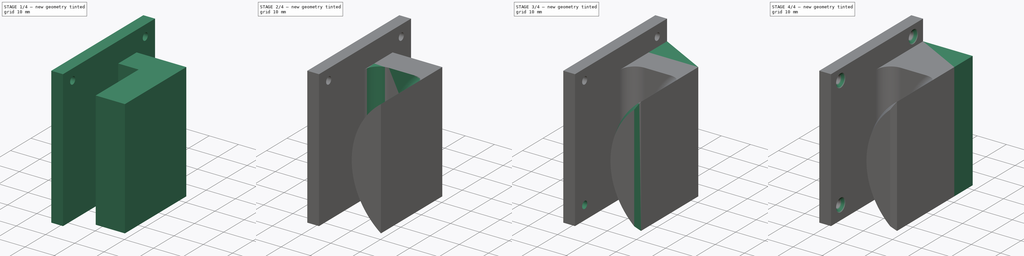
[diagram: build sequence overview — one tinted view per stage of 4, left to right]
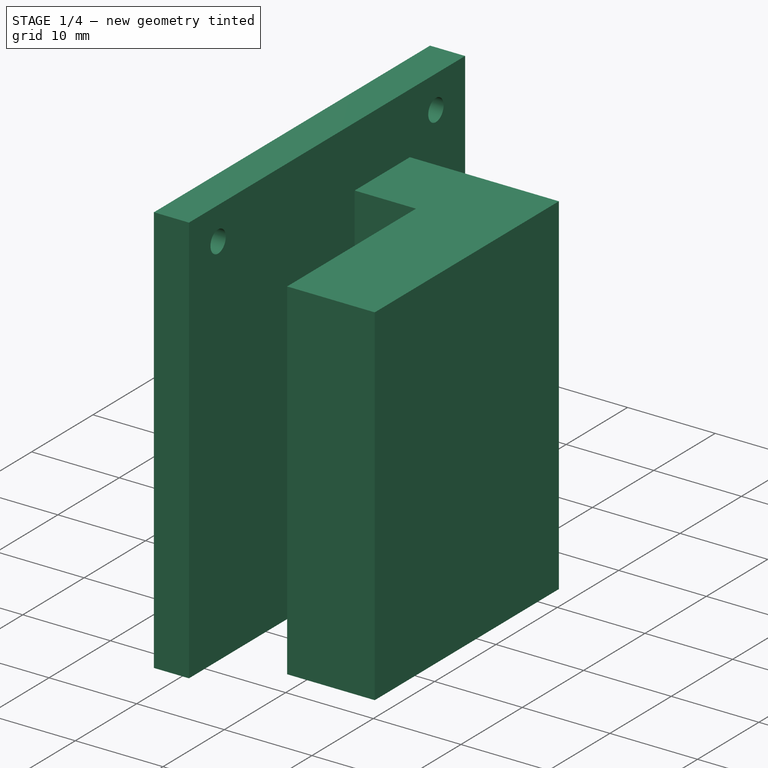
[diagram: stage 1 of 4 — iso view after this stage's code; geometry added in this stage tinted green]
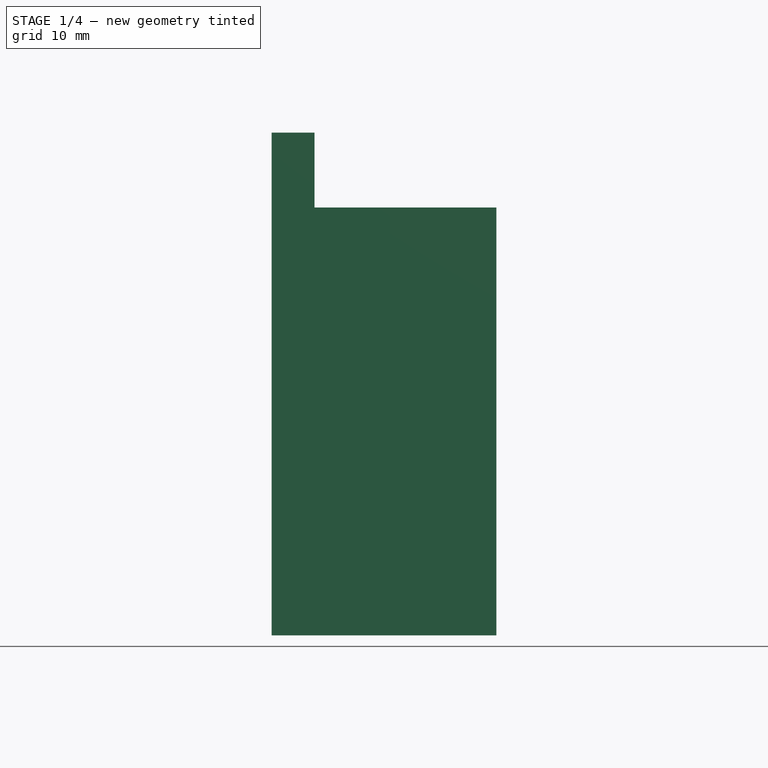
[diagram: stage 1 of 4 — front view after this stage's code; geometry added in this stage tinted green]
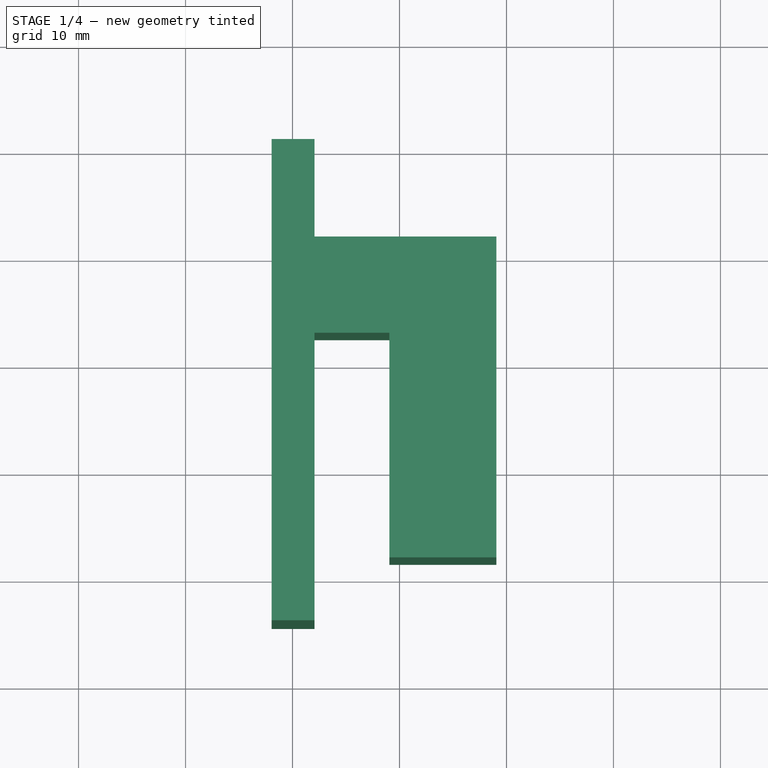
[diagram: stage 1 of 4 — top view after this stage's code; geometry added in this stage tinted green]
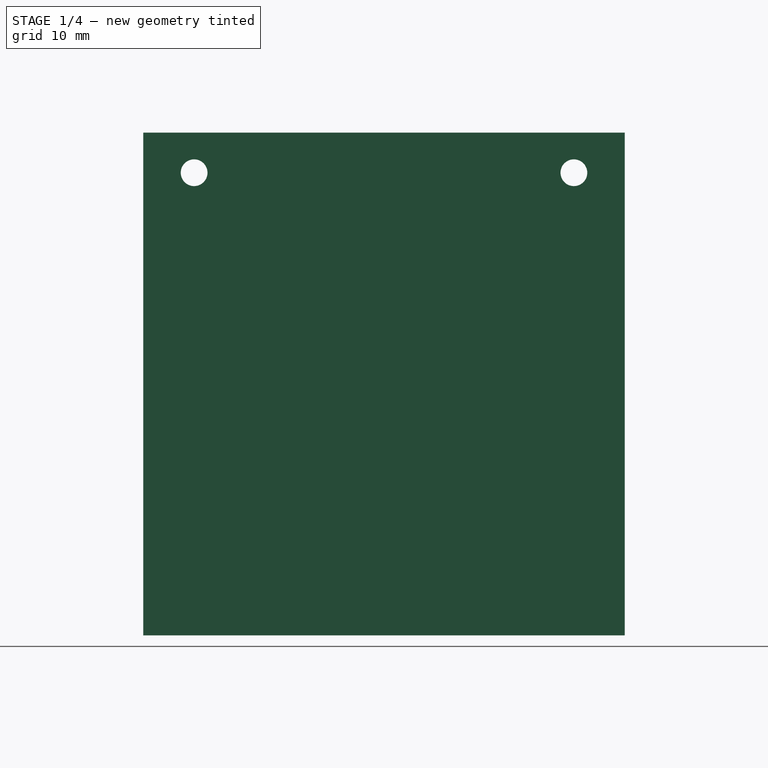
[diagram: stage 1 of 4 — right view after this stage's code; geometry added in this stage tinted green]
FCSTD DOCUMENT  (FreeCAD 1.0R39285 (Git))
Label: Вешалка для ледобуров 
License: All rights reserved
LicenseURL: https://en.wikipedia.org/wiki/All_rights_reserved
objects: Sketcher::SketchObject×7, PartDesign::Pocket×4, PartDesign::Pad×3, PartDesign::Chamfer×3, PartDesign::Fillet×2, PartDesign::Body×1
note: 51 computed .brp shape members not serialized (recipe doc carries the construction recipe); baked Part::Feature solids carry a one-line shape summary decoded from their .brp

FEATURE [Sketcher::SketchObject] Sketch
  ArcFitTolerance = 1e-06
  AttachmentSupport = -> [XY_Plane]
  FullyConstrained = false
  MakeInternals = false
  MapMode = 5
  sketch-geometry (15):
    g0: LineSegment StartX=-21.9488 StartY=30.6009 StartZ=0 EndX=-21.9488 EndY=-14.3991 EndZ=0
    g1: LineSegment StartX=-21.9488 StartY=-14.3991 StartZ=0 EndX=-17.9488 EndY=-14.3991 EndZ=0
    g2: LineSegment StartX=-17.9488 StartY=-14.3991 StartZ=0 EndX=-17.9488 EndY=12.6009 EndZ=0
    g3: LineSegment StartX=-17.9488 StartY=12.6009 StartZ=0 EndX=-10.9488 EndY=12.6009 EndZ=0
    g4: LineSegment StartX=-10.9488 StartY=12.6009 StartZ=0 EndX=-10.9488 EndY=-8.39905 EndZ=0
    g5: LineSegment StartX=-10.9488 StartY=-8.39905 StartZ=0 EndX=-0.948795 EndY=-8.39905 EndZ=0
    g6: LineSegment StartX=-0.948795 StartY=-8.39905 StartZ=0 EndX=-0.948795 EndY=21.6009 EndZ=0
    g7: LineSegment StartX=-0.948795 StartY=21.6009 StartZ=0 EndX=-17.9488 EndY=21.6009 EndZ=0
    g8: LineSegment StartX=-17.9488 StartY=21.6009 StartZ=0 EndX=-17.9488 EndY=30.6009 EndZ=0
    g9: LineSegment StartX=-17.9488 StartY=30.6009 StartZ=0 EndX=-21.9488 EndY=30.6009 EndZ=0
    g10: LineSegment [constr] StartX=-17.9488 StartY=-14.3991 StartZ=0 EndX=-17.9488 EndY=-5.39905 EndZ=0
    g11: LineSegment [constr] StartX=-17.9488 StartY=-5.39905 StartZ=0 EndX=-17.9488 EndY=3.60095 EndZ=0
    g12: LineSegment [constr] StartX=-17.9488 StartY=3.60095 StartZ=0 EndX=-17.9488 EndY=12.6009 EndZ=0
    g13: LineSegment [constr] StartX=-17.9488 StartY=12.6009 StartZ=0 EndX=-17.9488 EndY=21.6009 EndZ=0
    g14: LineSegment [constr] StartX=-17.9488 StartY=21.6009 StartZ=0 EndX=-17.9488 EndY=30.6009 EndZ=0
  constraints (40):
    c: Coincident(g0,g1)
    c: Coincident(g1,g2)
    c: Coincident(g2,g3)
    c: Coincident(g3,g4)
    c: Vertical(g4)
    c: Coincident(g4,g5)
    c: Horizontal(g5)
    c: Coincident(g5,g6)
    c: Vertical(g6)
    c: Coincident(g6,g7)
    c: Coincident(g7,g8)
    c: Coincident(g8,g9)
    c: Coincident(g9,g0)
    c: Vertical(g0)
    c: Horizontal(g9)
    c: Horizontal(g7)
    c: Horizontal(g3)
    c: Vertical(g8)
    c: Horizontal(g1)
    c: Vertical(g2)
    c: Coincident(g1,g10)
    c: Coincident(g10,g11)
    c: Vertical(g11)
    c: Coincident(g11,g12)
    c: Coincident(g12,g13)
    c: Coincident(g13,g14)
    c: Coincident(g14,g8)
    c: Equal(g14,g13)
    c: Equal(g13,g12)
    c: Equal(g12,g11)
    c: Equal(g11,g10)
    c: Vertical(g13)
    c: Vertical(g12)
    c: Coincident(g7,g13)
    c: Coincident(g2,g12)
    c: DistanceX(g9,g9) = 4
    c: DistanceY(g1,g4) = 6
    c: DistanceY(g1,g8) = 45
    c: DistanceX(g2,g3) = 7
    c: DistanceX(g5,g5) = 10
FEATURE [PartDesign::Pad] Pad
  Direction = (0,0,1)
  Length = 40
  Length2 = 10
  Profile = -> Sketch
  ReferenceAxis = -> Sketch [N_Axis]
  Refine = true
  Suppressed = false
  Type = 0
FEATURE [Sketcher::SketchObject] Sketch001
  ArcFitTolerance = 1e-06
  AttachmentSupport = -> [Pad]
  ExternalGeometry = -> [Pad]
  FullyConstrained = true
  MakeInternals = false
  MapMode = 5
  Placement = pos=(0,0,40) rot=(0,0,1;0rad)
  sketch-geometry (4):
    g0: LineSegment StartX=-21.9488 StartY=30.6009 StartZ=0 EndX=-21.9488 EndY=-14.3991 EndZ=0
    g1: LineSegment StartX=-21.9488 StartY=-14.3991 StartZ=0 EndX=-17.9488 EndY=-14.3991 EndZ=0
    g2: LineSegment StartX=-17.9488 StartY=-14.3991 StartZ=0 EndX=-17.9488 EndY=30.6009 EndZ=0
    g3: LineSegment StartX=-17.9488 StartY=30.6009 StartZ=0 EndX=-21.9488 EndY=30.6009 EndZ=0
  constraints (10):
    c: Coincident(g0,g1)
    c: Coincident(g1,g2)
    c: Coincident(g2,g3)
    c: Coincident(g3,g0)
    c: Vertical(g0)
    c: Vertical(g2)
    c: Horizontal(g1)
    c: Horizontal(g3)
    c: Coincident(g0,g-3)
    c: Coincident(g1,g-4)
FEATURE [PartDesign::Pad] Pad001
  BaseFeature = -> Pad
  Direction = (0,0,1)
  Length = 7
  Length2 = 10
  Profile = -> Sketch001
  ReferenceAxis = -> Sketch001 [N_Axis]
  Refine = true
  Suppressed = false
  Type = 0
FEATURE [Sketcher::SketchObject] Sketch002
  ArcFitTolerance = 1e-06
  AttachmentSupport = -> [Pad001]
  ExternalGeometry = -> [Pad001]
  FullyConstrained = true
  MakeInternals = false
  MapMode = 5
  Placement = pos=(-17.9488,0,0) rot=(0.57735,0.57735,0.57735;2.0944rad)
  sketch-geometry (4):
    g0: Circle CenterX=-9.64905 CenterY=43.25 CenterZ=0 NormalX=0 NormalY=0 NormalZ=1 AngleXU=0 Radius=1.25
    g1: Circle CenterX=25.8509 CenterY=43.25 CenterZ=0 NormalX=0 NormalY=0 NormalZ=1 AngleXU=0 Radius=1.25
    g2: GeomPoint X=-10.8991 Y=43.25 Z=0
    g3: GeomPoint X=27.1009 Y=43.25 Z=0
  constraints (10):
    c: PointOnObject(g2,g0)
    c: PointOnObject(g3,g1)
    c: Horizontal(g0,g2)
    c: Horizontal(g1,g3)
    c: DistanceX(g-3,g2) = 3.5
    c: Distance(g0,g-3) = 2.5
    c: Distance(g1,g-3) = 2.5
    c: DistanceX(g3,g-3) = 3.5
    c: Diameter(g1) = 2.5
    c: Equal(g1,g0)
FEATURE [PartDesign::Pocket] Pocket
  BaseFeature = -> Pad001
  Direction = (-1,0,0)
  Length = 5
  Length2 = 5
  Profile = -> Sketch002
  ReferenceAxis = -> Sketch002 [N_Axis]
  Refine = true
  Suppressed = false
  Type = 1
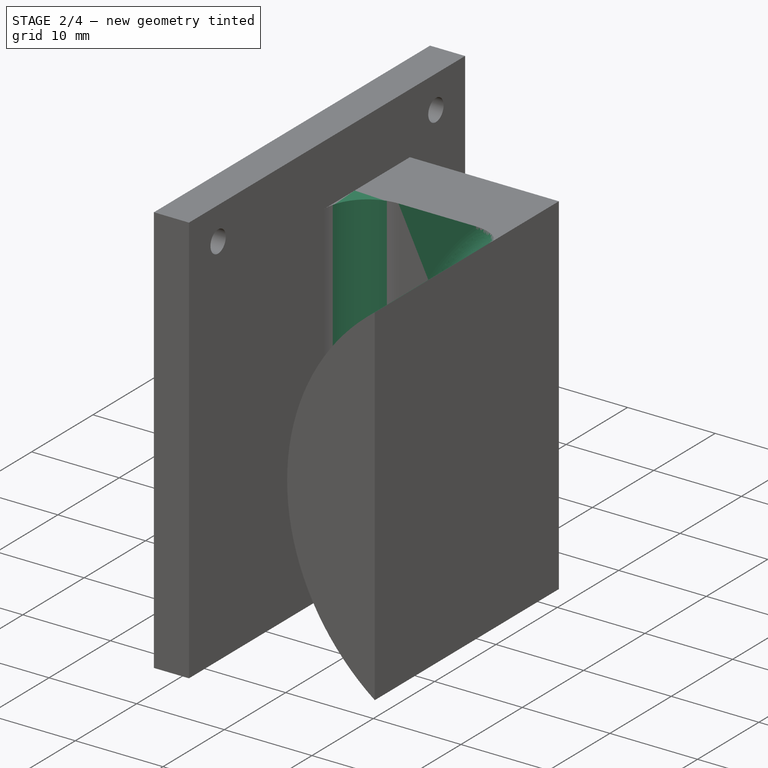
[diagram: stage 2 of 4 — iso view after this stage's code; geometry added in this stage tinted green]
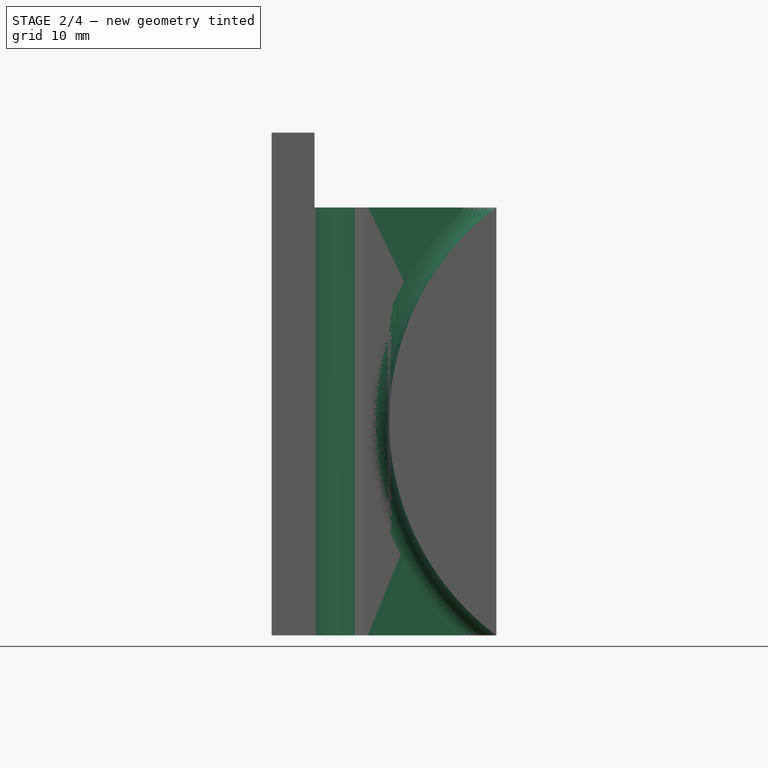
[diagram: stage 2 of 4 — front view after this stage's code; geometry added in this stage tinted green]
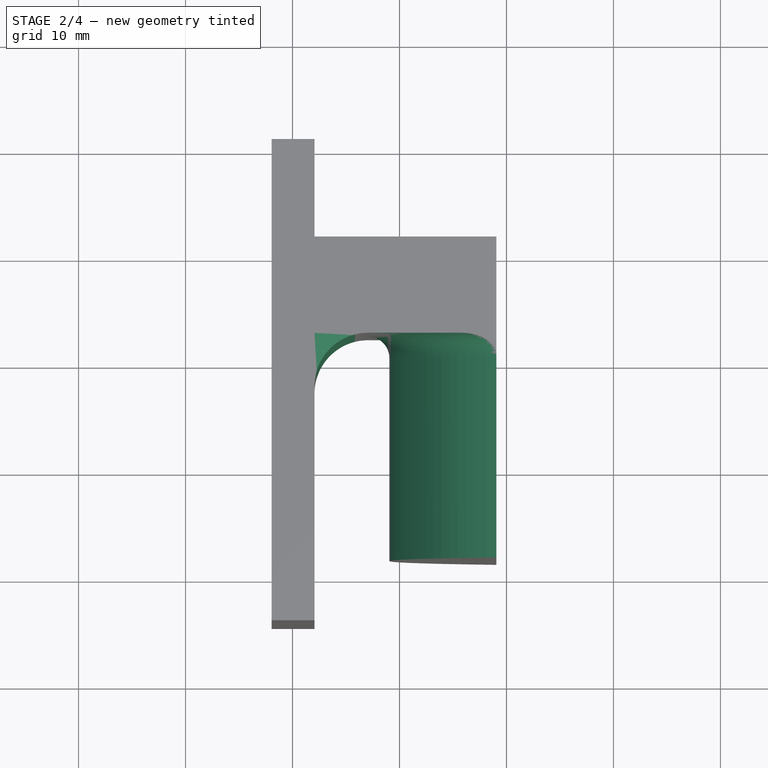
[diagram: stage 2 of 4 — top view after this stage's code; geometry added in this stage tinted green]
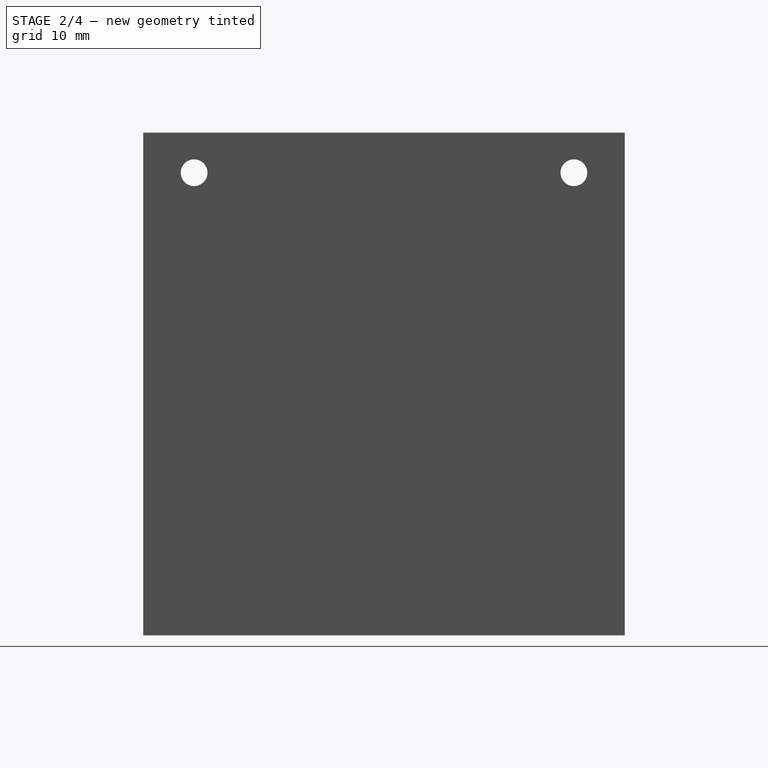
[diagram: stage 2 of 4 — right view after this stage's code; geometry added in this stage tinted green]
FEATURE [Sketcher::SketchObject] Sketch003
  ArcFitTolerance = 1e-06
  FullyConstrained = false
  MakeInternals = false
  MapMode = 5
  Placement = pos=(0,-8.39905,0) rot=(1,0,0;1.5708rad)
  sketch-geometry (4):
    g0: ArcOfCircle CenterX=14.0512 CenterY=20 CenterZ=0 NormalX=0 NormalY=0 NormalZ=1 AngleXU=0 Radius=25 StartAngle=2.2143 EndAngle=4.06889
    g1: LineSegment StartX=-0.948795 StartY=0 StartZ=0 EndX=-12.134 EndY=-1.98544 EndZ=0
    g2: LineSegment StartX=-12.134 StartY=-1.98544 StartZ=0 EndX=-12.134 EndY=42.9298 EndZ=0
    g3: LineSegment StartX=-12.134 StartY=42.9298 StartZ=0 EndX=-0.948795 EndY=40 EndZ=0
  constraints (8):
    c: Coincident(g0,g-5)
    c: Coincident(g0,g-6)
    c: Tangent(g0,g-7)
    c: Coincident(g1,g0)
    c: Coincident(g2,g1)
    c: Vertical(g2)
    c: Coincident(g3,g2)
    c: Coincident(g3,g0)
FEATURE [PartDesign::Pocket] Pocket001
  BaseFeature = -> Pocket
  Direction = (0,1,-2e-16)
  Length = 21
  Length2 = 5
  Profile = -> Sketch003
  ReferenceAxis = -> Sketch003 [N_Axis]
  Refine = true
  Suppressed = false
  Type = 0
FEATURE [PartDesign::Fillet] Fillet
  Base = -> Pocket001 [Edge14]
  BaseFeature = -> Pocket001
  Radius = 5
  Refine = true
  SupportTransform = false
  Suppressed = false
  UseAllEdges = false
FEATURE [PartDesign::Fillet] Fillet001
  Base = -> Fillet [Edge13]
  BaseFeature = -> Fillet
  Radius = 2
  Refine = true
  SupportTransform = false
  Suppressed = false
  UseAllEdges = false
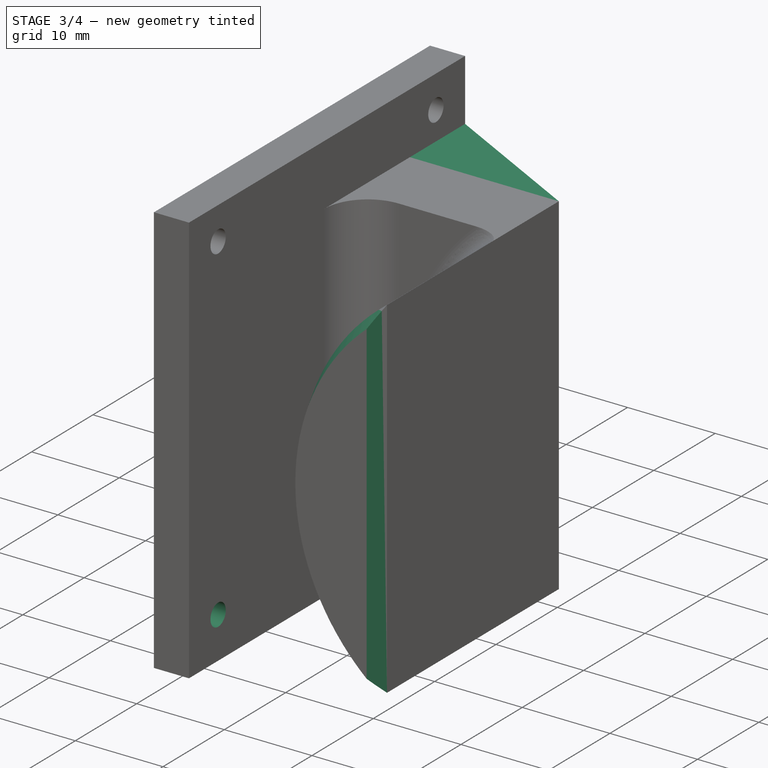
[diagram: stage 3 of 4 — iso view after this stage's code; geometry added in this stage tinted green]
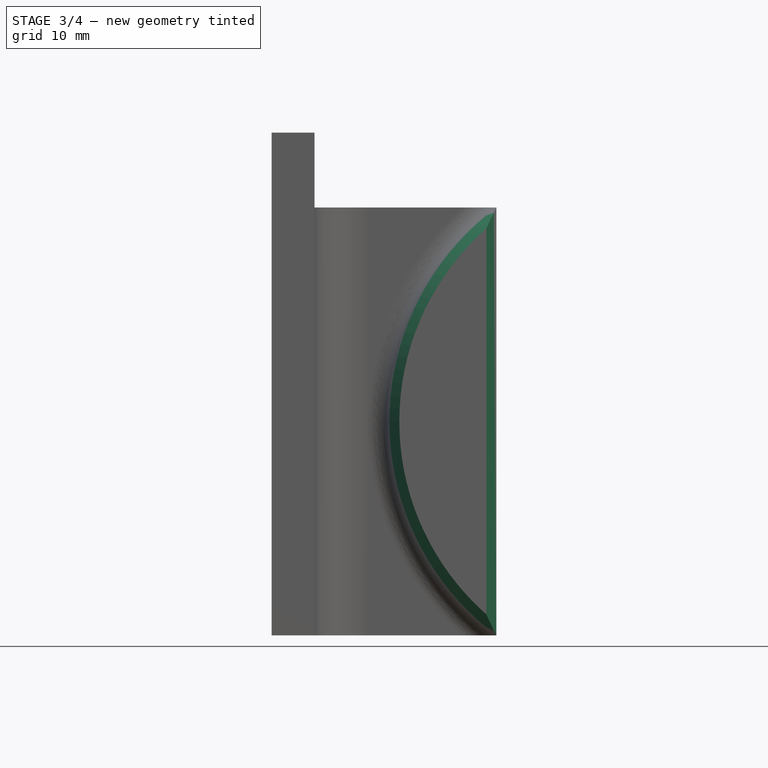
[diagram: stage 3 of 4 — front view after this stage's code; geometry added in this stage tinted green]
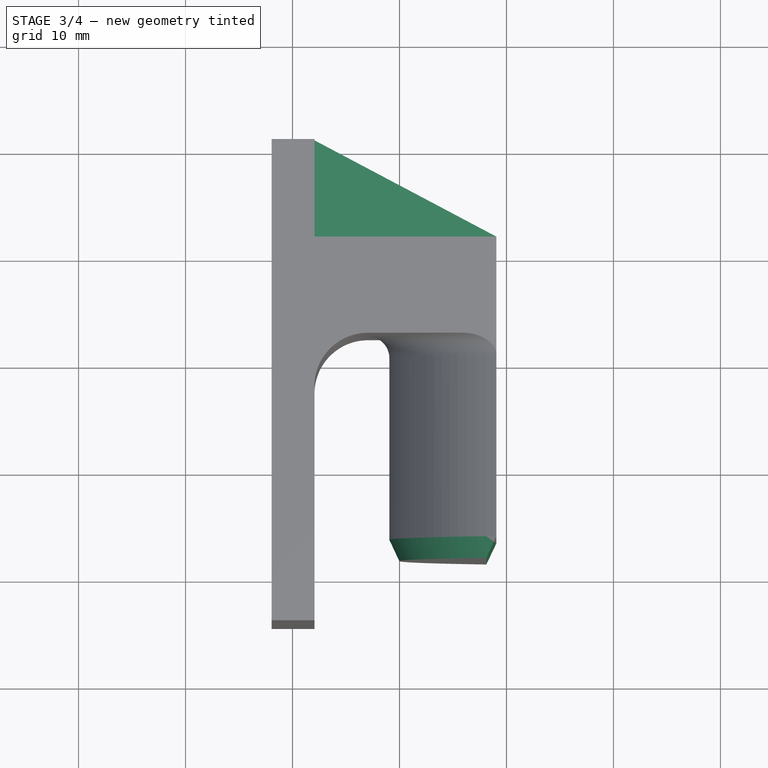
[diagram: stage 3 of 4 — top view after this stage's code; geometry added in this stage tinted green]
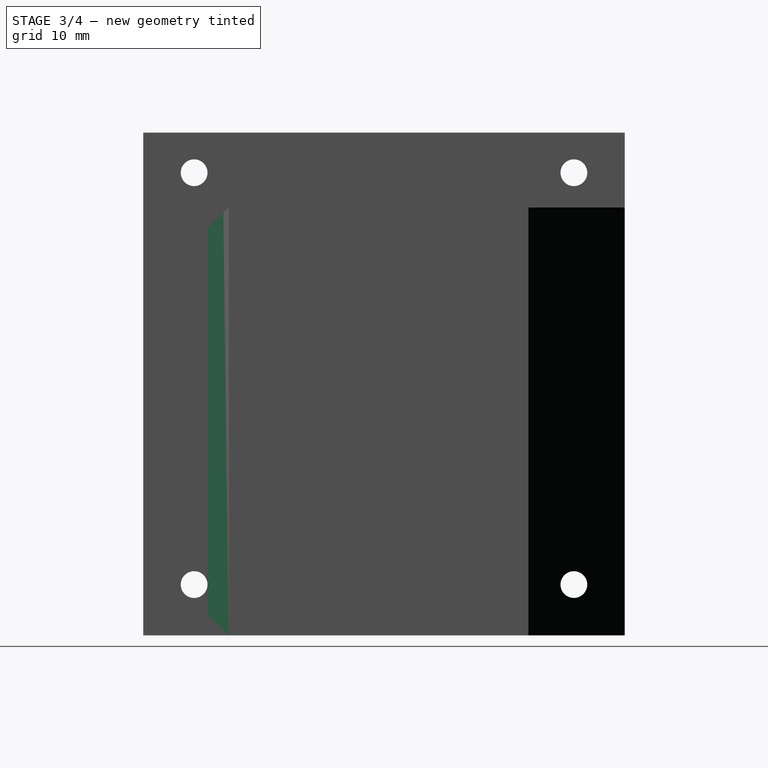
[diagram: stage 3 of 4 — right view after this stage's code; geometry added in this stage tinted green]
FEATURE [PartDesign::Chamfer] Chamfer
  Angle = 25
  Base = -> Fillet001 [Edge41,Edge20]
  BaseFeature = -> Fillet001
  ChamferType = 2
  FlipDirection = false
  Refine = true
  Size = 2
  Size2 = 1
  SupportTransform = false
  Suppressed = false
  UseAllEdges = false
FEATURE [PartDesign::Chamfer] Chamfer001
  Angle = 27.9
  Base = -> Chamfer [Edge30]
  BaseFeature = -> Chamfer
  ChamferType = 2
  FlipDirection = false
  Refine = true
  Size = 16.99
  Size2 = 1
  SupportTransform = false
  Suppressed = false
  UseAllEdges = false
FEATURE [Sketcher::SketchObject] Sketch004
  ArcFitTolerance = 1e-06
  AttachmentOffset = pos=(0,0,16) rot=(0,0,1;0rad)
  AttachmentSupport = -> [Chamfer001]
  ExternalGeometry = -> [Chamfer001]
  FullyConstrained = true
  MakeInternals = false
  MapMode = 5
  Placement = pos=(-1.9488,0,0) rot=(0.57735,0.57735,0.57735;2.0944rad)
  sketch-geometry (2):
    g0: Circle CenterX=-9.64905 CenterY=4.75 CenterZ=0 NormalX=0 NormalY=0 NormalZ=1 AngleXU=0 Radius=1.25
    g1: Circle CenterX=25.8509 CenterY=4.75 CenterZ=0 NormalX=0 NormalY=0 NormalZ=1 AngleXU=0 Radius=1.25
  constraints (6):
    c: Distance(g0,g-1) = 3.5
    c: Vertical(g0,g-3)
    c: Equal(g-3,g0)
    c: Horizontal(g1,g0)
    c: Vertical(g-4,g1)
    c: Equal(g1,g0)
FEATURE [PartDesign::Pocket] Pocket002
  BaseFeature = -> Chamfer001
  Direction = (-1,0,0)
  Length = 5
  Length2 = 5
  Profile = -> Sketch004
  ReferenceAxis = -> Sketch004 [N_Axis]
  Refine = true
  Suppressed = false
  Type = 1
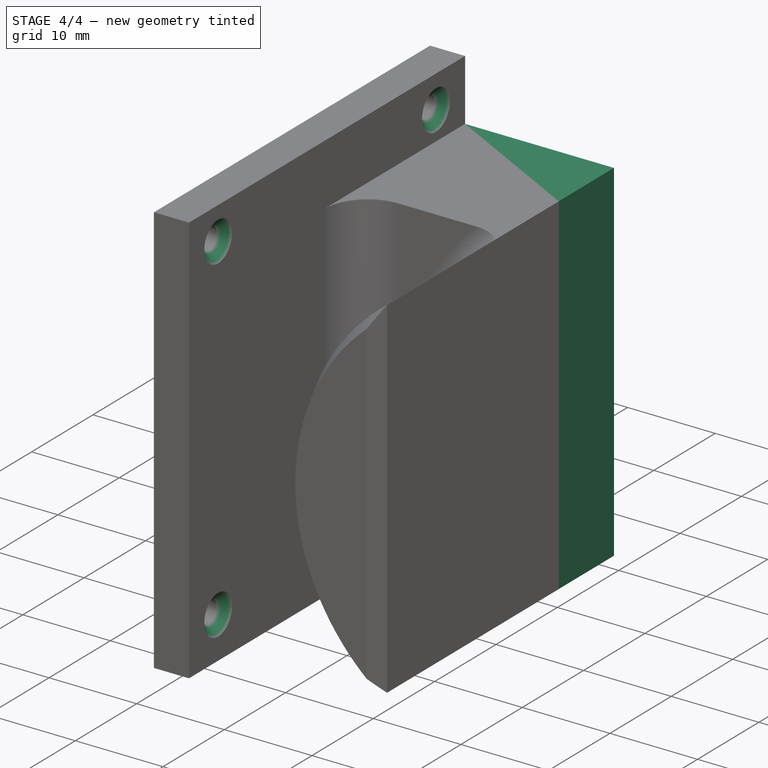
[diagram: stage 4 of 4 — iso view after this stage's code; geometry added in this stage tinted green]
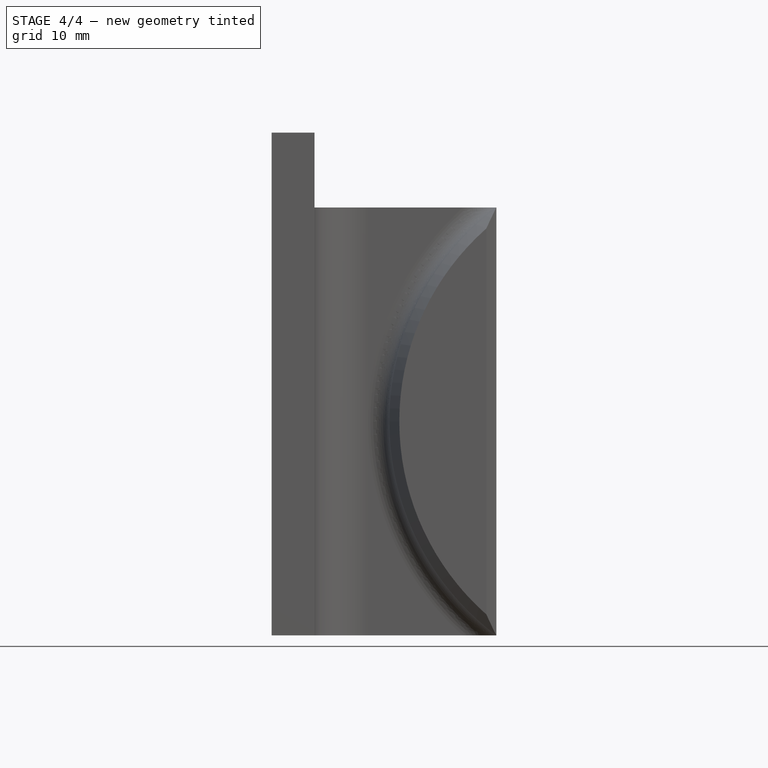
[diagram: stage 4 of 4 — front view after this stage's code; geometry added in this stage tinted green]
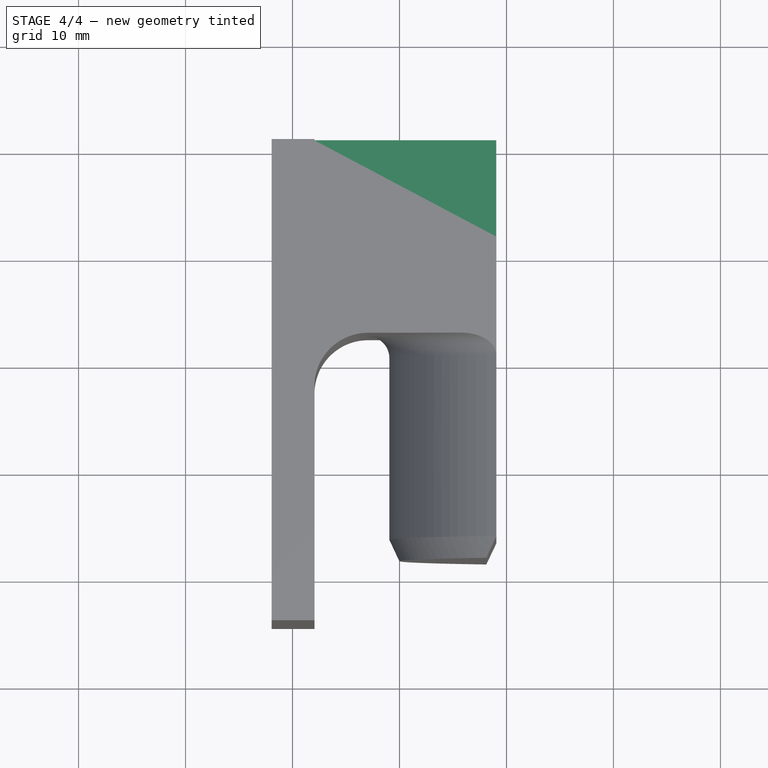
[diagram: stage 4 of 4 — top view after this stage's code; geometry added in this stage tinted green]
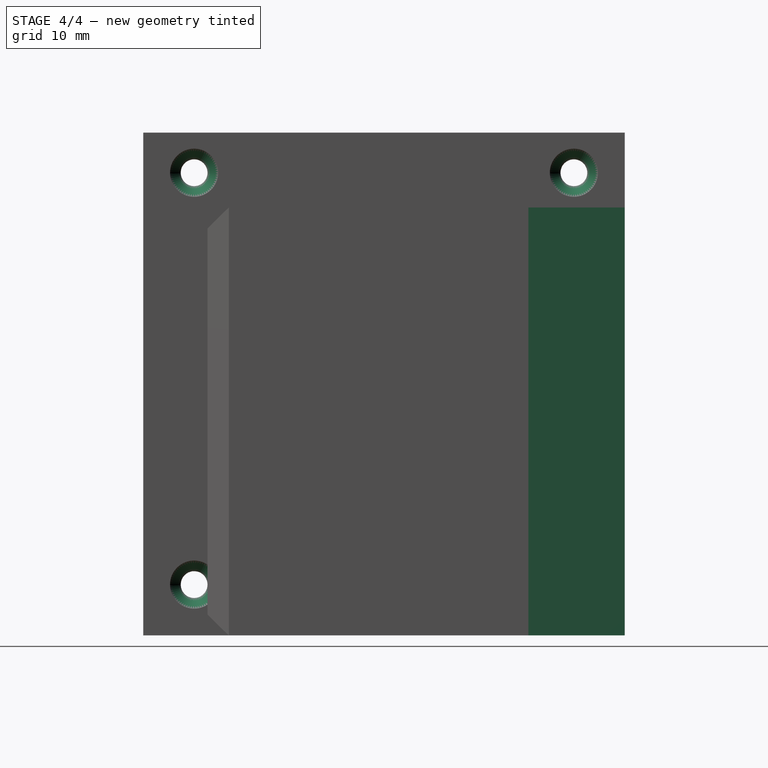
[diagram: stage 4 of 4 — right view after this stage's code; geometry added in this stage tinted green]
FEATURE [Sketcher::SketchObject] Sketch005
  ArcFitTolerance = 1e-06
  AttachmentSupport = -> [Pocket002]
  ExternalGeometry = -> [Pocket002]
  FullyConstrained = true
  MakeInternals = false
  MapMode = 5
  Placement = pos=(-17.9488,0,0) rot=(0.57735,0.57735,0.57735;2.0944rad)
  sketch-geometry (1):
    g0: Circle CenterX=25.8509 CenterY=4.75 CenterZ=0 NormalX=0 NormalY=0 NormalZ=1 AngleXU=0 Radius=3.1
  constraints (2):
    c: Coincident(g0,g-3)
    c: Diameter(g0) = 6.2
FEATURE [PartDesign::Pocket] Pocket003
  BaseFeature = -> Pocket002
  Direction = (-1,0,0)
  Length = 5
  Length2 = 5
  Profile = -> Sketch005
  ReferenceAxis = -> Sketch005 [N_Axis]
  Refine = true
  Reversed = true
  Suppressed = false
  Type = 1
FEATURE [PartDesign::Chamfer] Chamfer002
  Angle = 45
  Base = -> Pocket003 [Edge59,Edge32,Edge33,Edge31]
  BaseFeature = -> Pocket003
  ChamferType = 0
  FlipDirection = false
  Refine = true
  Size = 1
  Size2 = 1
  SupportTransform = false
  Suppressed = false
  UseAllEdges = false
FEATURE [Sketcher::SketchObject] Sketch006
  ArcFitTolerance = 1e-06
  AttachmentSupport = -> [Chamfer002]
  ExternalGeometry = -> [Chamfer002]
  FullyConstrained = true
  MakeInternals = false
  MapMode = 5
  Placement = pos=(0,0,0) rot=(1,0,0;3.14159rad)
  sketch-geometry (3):
    g0: LineSegment StartX=-17.9488 StartY=-30.5967 StartZ=0 EndX=-0.958795 EndY=-21.6009 EndZ=0
    g1: LineSegment StartX=-0.958795 StartY=-21.6009 StartZ=0 EndX=-0.958795 EndY=-30.5967 EndZ=0
    g2: LineSegment StartX=-0.958795 StartY=-30.5967 StartZ=0 EndX=-17.9488 EndY=-30.5967 EndZ=0
  constraints (7):
    c: Coincident(g-3,g0)
    c: Coincident(g0,g-3)
    c: Coincident(g0,g1)
    c: Vertical(g1)
    c: Coincident(g1,g2)
    c: Coincident(g2,g0)
    c: Horizontal(g2)
FEATURE [PartDesign::Pad] Pad002
  BaseFeature = -> Chamfer002
  Direction = (0,0,-1)
  Length = 10
  Length2 = 10
  Profile = -> Sketch006
  ReferenceAxis = -> Sketch006 [N_Axis]
  Refine = true
  Reversed = true
  Suppressed = false
  Type = 3
  UpToFace = -> Chamfer002 [Face6]
FEATURE [PartDesign::Body] Body  label="Тело"
  AllowCompound = false
  Group = -> [Sketch,Pad,Sketch001,Pad001,Sketch002,Pocket,Sketch003,Pocket001,Fillet,Fillet001,Chamfer,Chamfer001,Sketch004,Pocket002,Sketch005,Pocket003,Chamfer002,Sketch006,Pad002]
  Origin = -> Origin
  Tip = -> Pad002
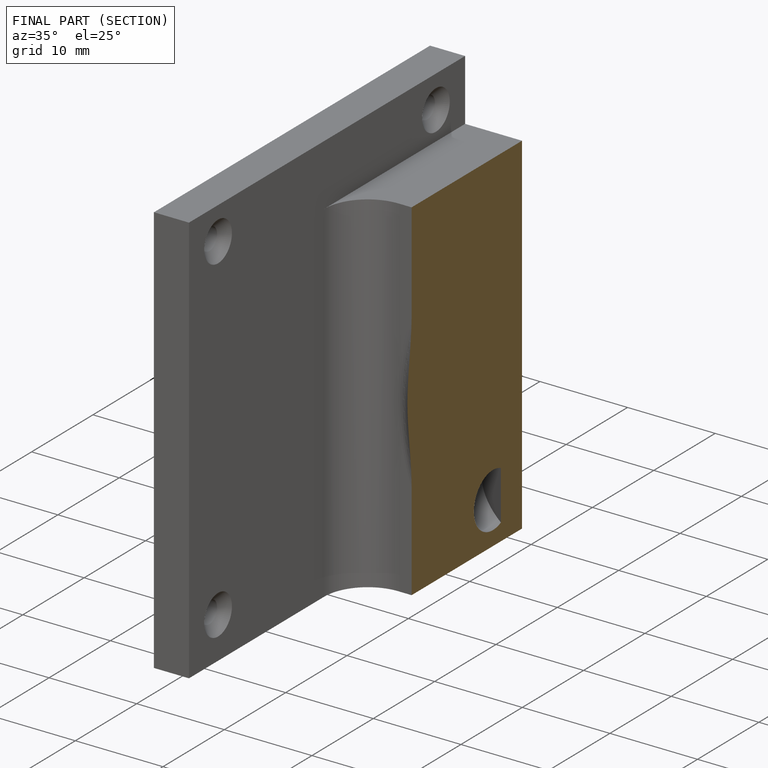
[diagram: finished part — half-section view (interior)]
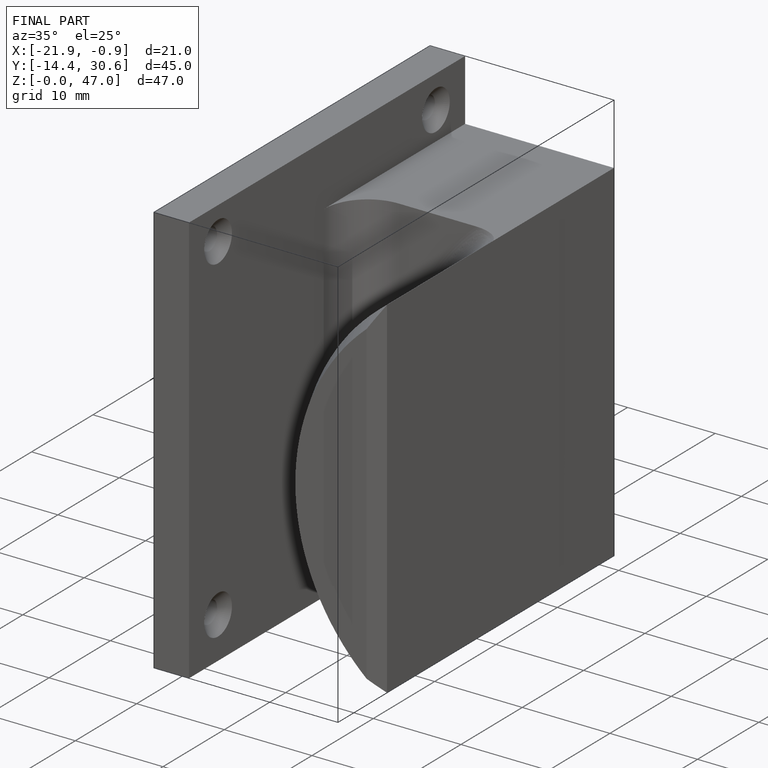
[diagram: finished part — iso view with bounding-box wireframe]
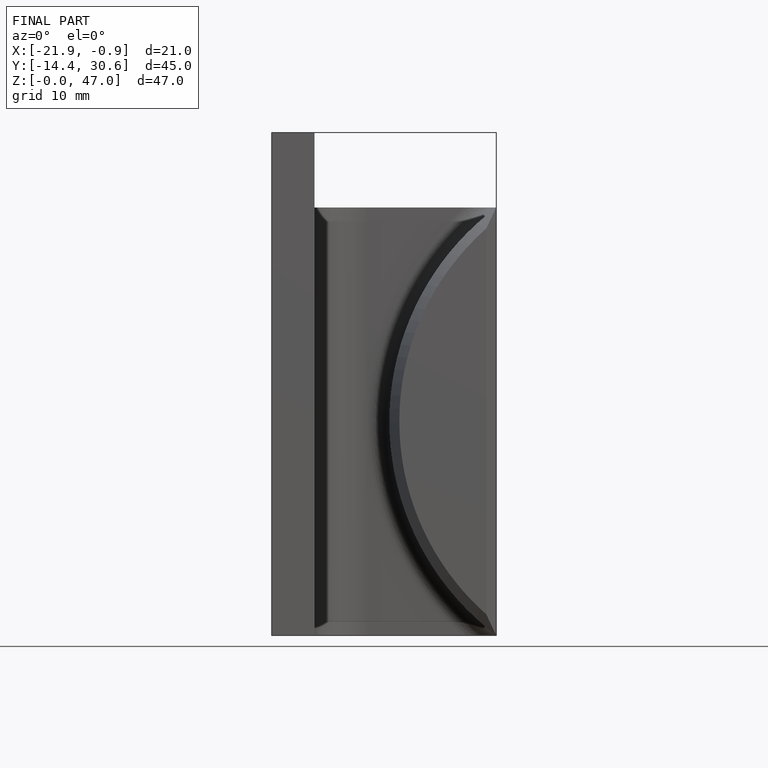
[diagram: finished part — front view with bounding-box wireframe]
